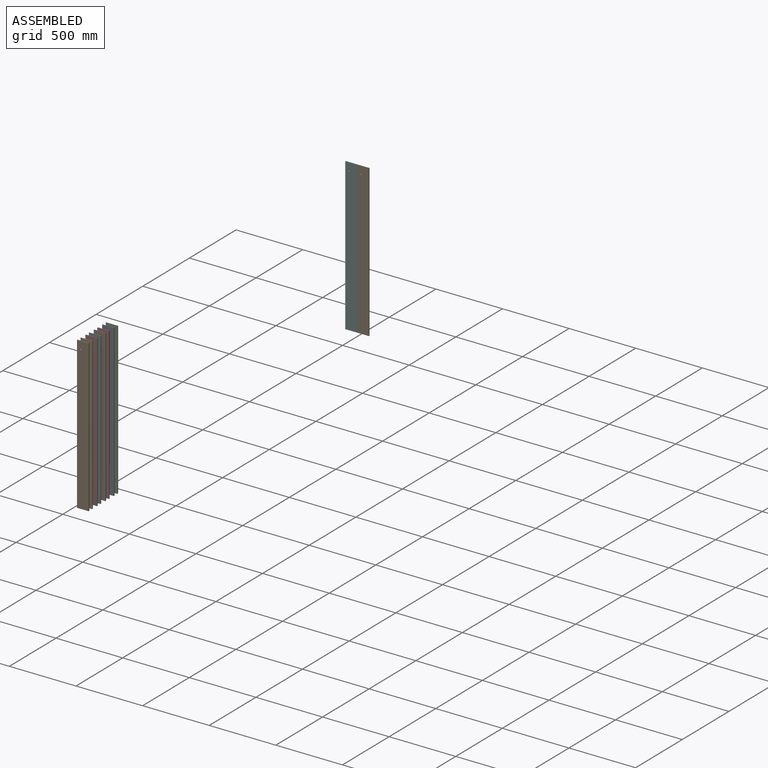
[diagram: assembled view]
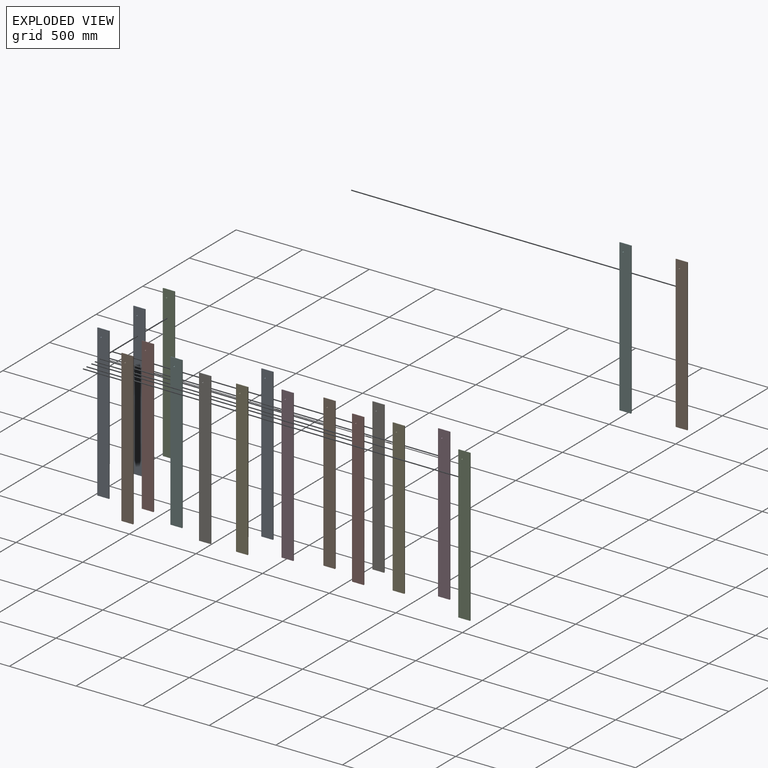
[diagram: exploded view]
GUIDED TOUR — MATED ASSEMBLY (Onshape document 61c3415b2d55d3865baf133d, AutoMate assembly 61c3415b2d55d3865baf133d_51462858bf2ae01c773f1abe_f313c27092914a25d2ca75d9_default)

This assembly has 18 components, labeled P0..P17 below (a component is one placed occurrence of a part; the same part can appear more than once), held together by 1 mate. A mate is a constraint between two components; its type names the relative motion it leaves free:
  CYLINDRICAL — leaves both rotation about and translation along the listed axis free.
Axis/direction vectors are unit vectors and 'through' points are millimeter coordinates, both in the assembly's world frame.

MATES
  1. CYLINDRICAL "Cylindrical 1": P8 <-> P10, axis (0.000, 1.000, 0.000) through (-403.27, -138.05, 668.45) mm

ASSEMBLY ORDER
  1. P16 — the base component [order verified]
  2. P15 [order verified]
  3. P13 [order verified]
  4. P14 [order verified]
  5. P12 [order verified]
  6. P11 [order verified]
  7. P9 [order verified]
  8. P7 [order verified]
  9. P8 [order verified]
  10. P10 [order verified]
  11. P6 [order verified]
  12. P4 [order verified]
  13. P3 [order verified]
  14. P2 [order verified]
  15. P0 [order verified]
  16. P5 [order verified]
  17. P17 [order verified]
  18. P1 [order verified]
Order-tag legend:
  [order verified] — this step's position reverses a verified removal order: the component was checked to insert without passing through the ones already placed.

Of the 18 components, 18 carry the full construction recipe — the FeatureScript program that regenerates the part's solid from scratch; the rest are supplied as boundary geometry only.
Because this assembly has more than 12 components, the tour below covers the 12 most significant ones individually (every recipe-attached component first, then the largest by part volume), in assembly order; the remaining 6 are summarized together in a grouped section at the end.
Each toured component is shown spotlighted twice — in the assembled view, then in the exploded view, where a leader line traces a displaced component back to its assembled socket (saturated green if recipe-attached, orange if geometry-only; every other component desaturated gray) — followed by its recipe or geometry summary and the mates that hold it.
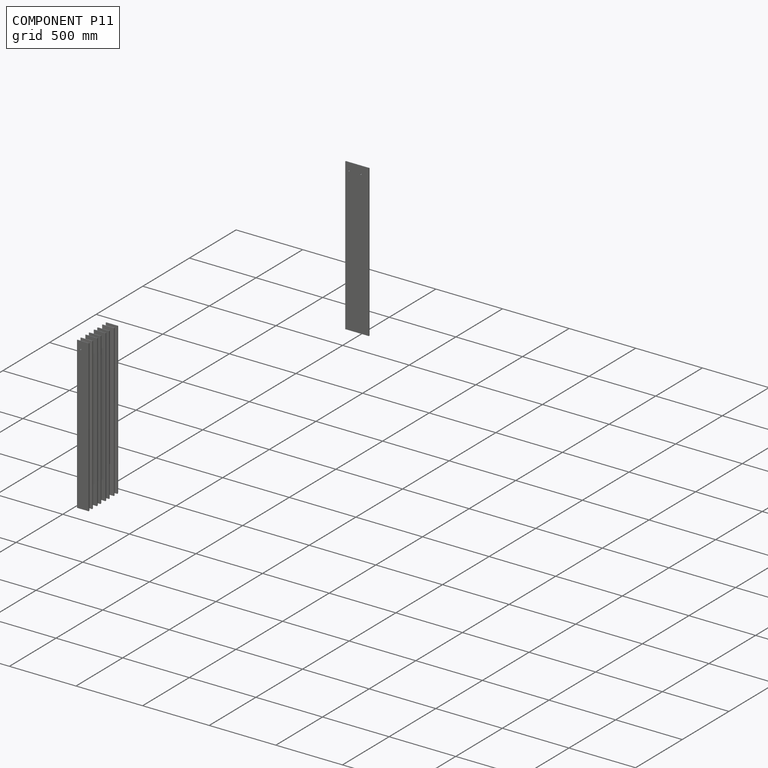
[diagram: component P11 — assembled]
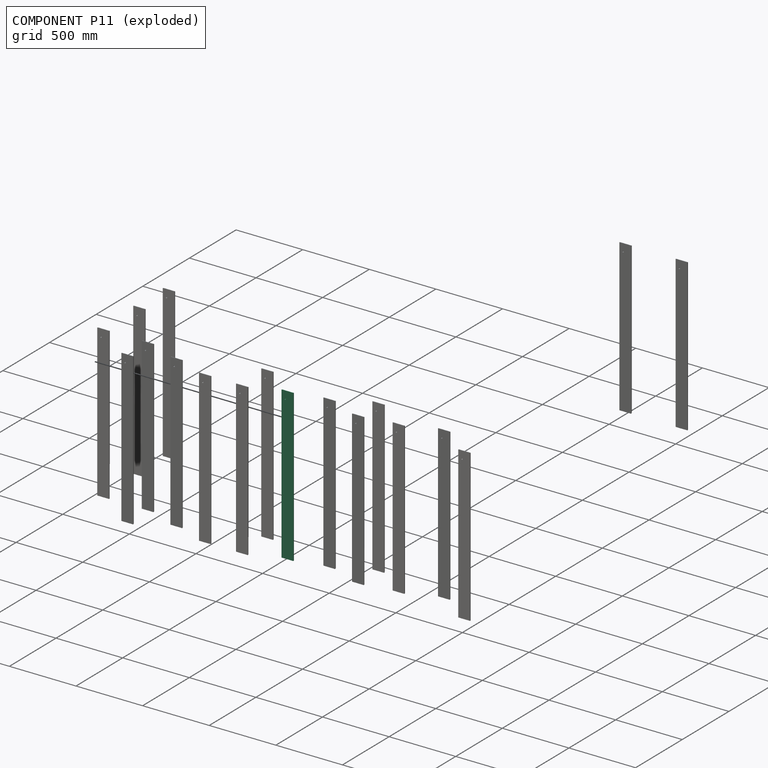
[diagram: component P11 — exploded]
COMPONENT P11 — same part as P0 (CADFS 00301429); its construction recipe is shown at P0.
Held by: no mates (free).
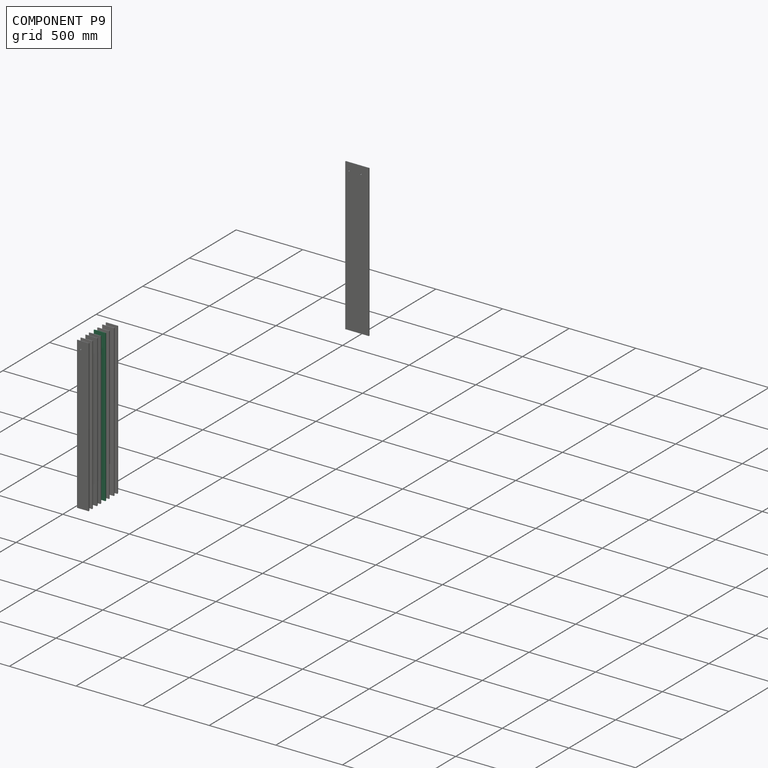
[diagram: component P9 — assembled]
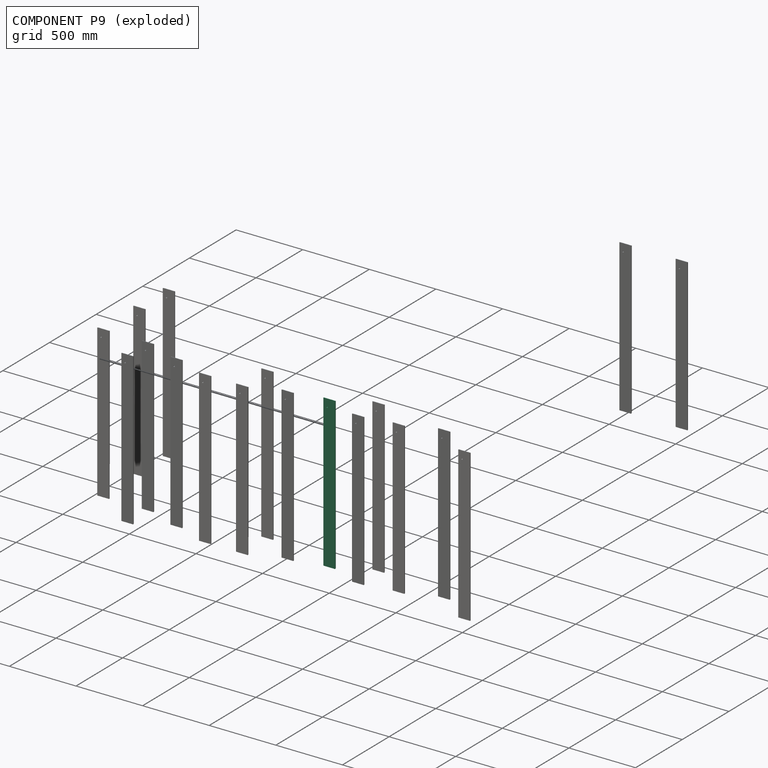
[diagram: component P9 — exploded]
COMPONENT P9 — same part as P0 (CADFS 00301429); its construction recipe is shown at P0.
Held by: no mates (free).
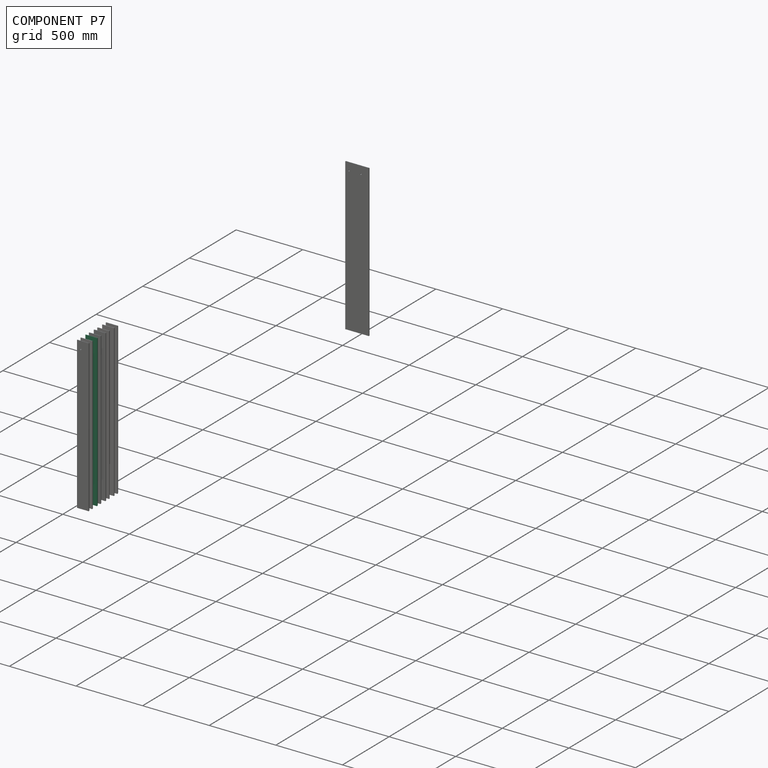
[diagram: component P7 — assembled]
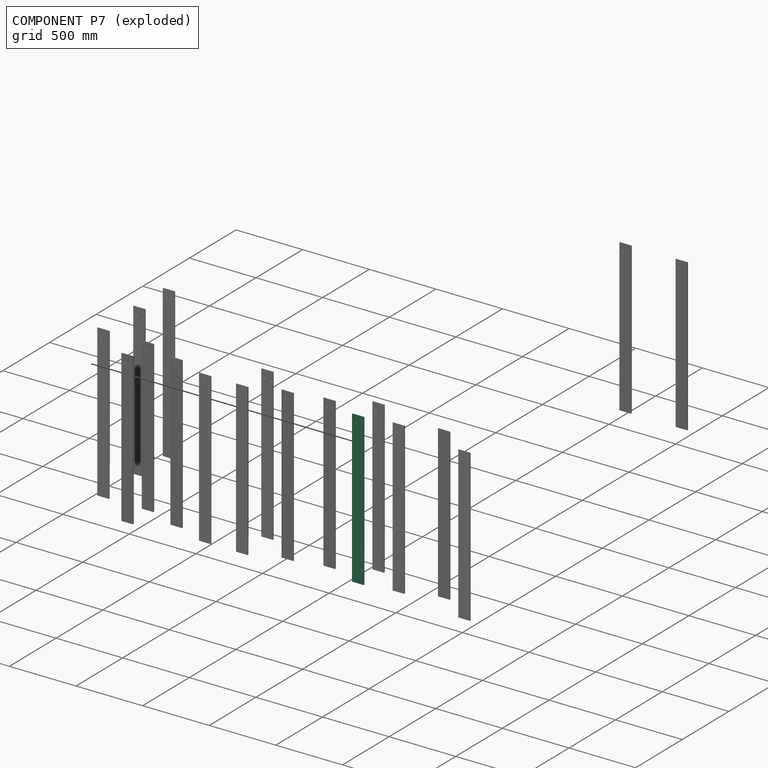
[diagram: component P7 — exploded]
COMPONENT P7 — same part as P0 (CADFS 00301429); its construction recipe is shown at P0.
Held by: no mates (free).
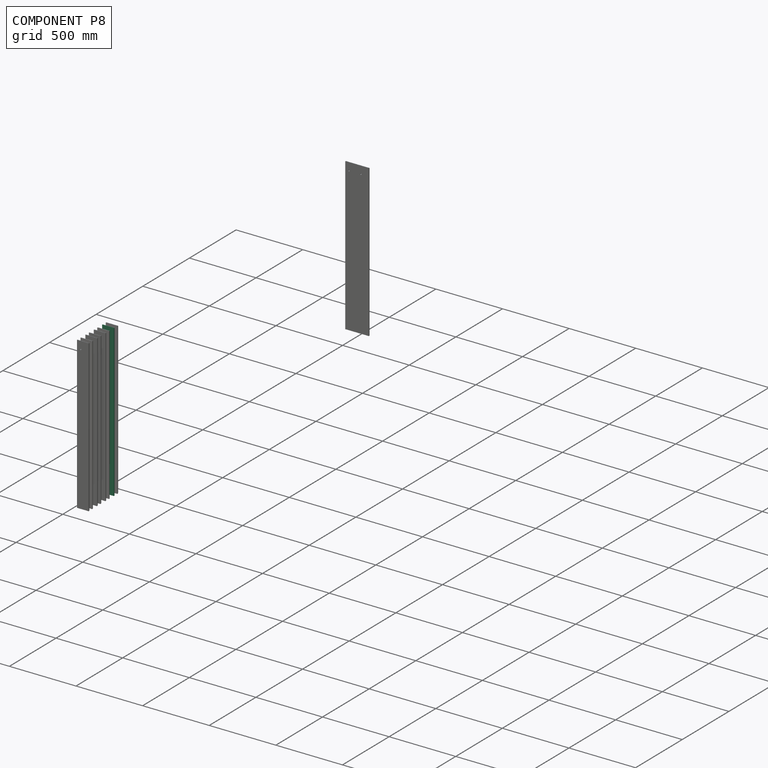
[diagram: component P8 — assembled]
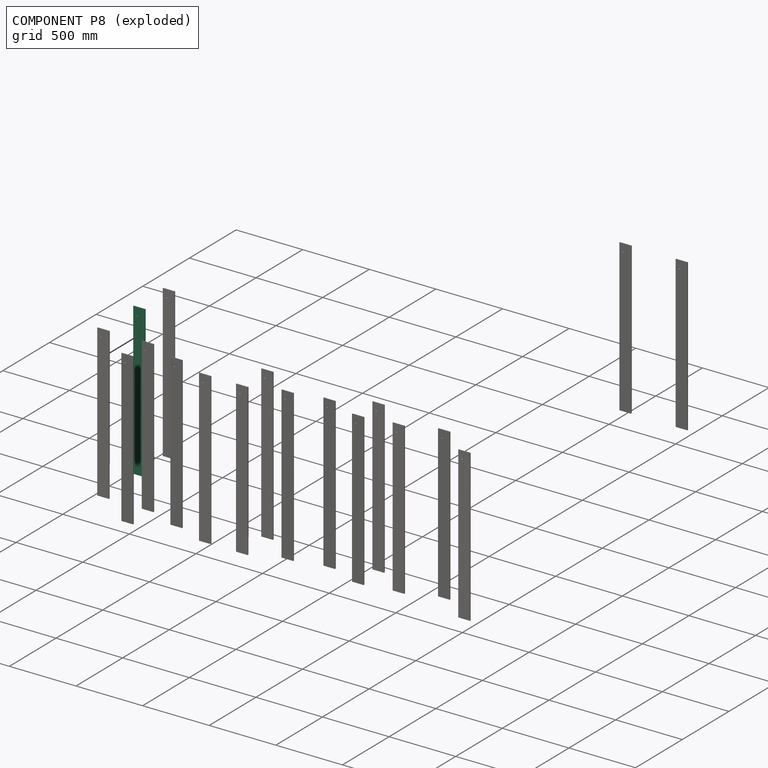
[diagram: component P8 — exploded]
COMPONENT P8 — same part as P0 (CADFS 00301429); its construction recipe is shown at P0.
Held by: CYLINDRICAL mate "Cylindrical 1" to P10.
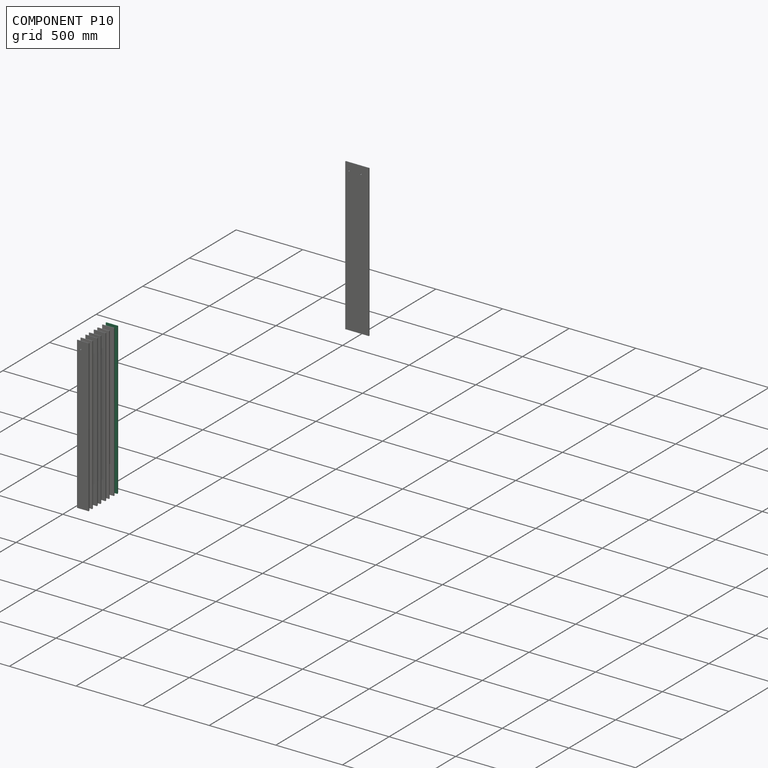
[diagram: component P10 — assembled]
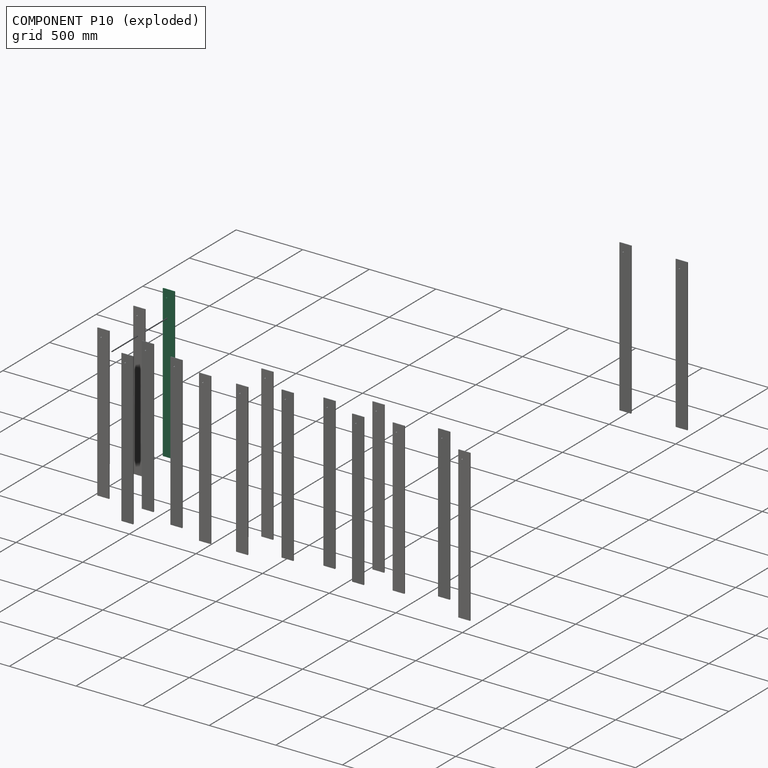
[diagram: component P10 — exploded]
COMPONENT P10 — same part as P0 (CADFS 00301429); its construction recipe is shown at P0.
Held by: CYLINDRICAL mate "Cylindrical 1" to P8.
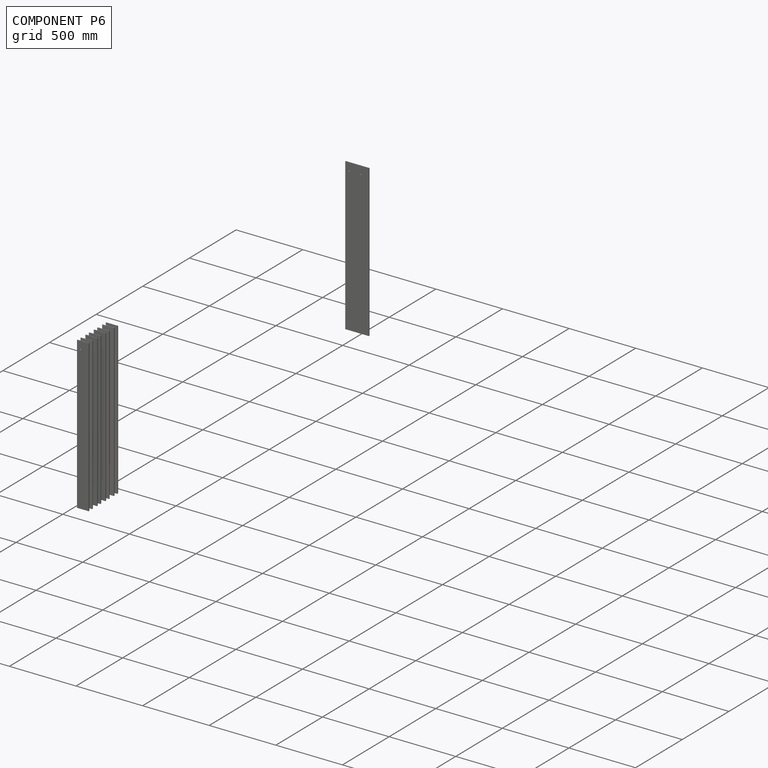
[diagram: component P6 — assembled]
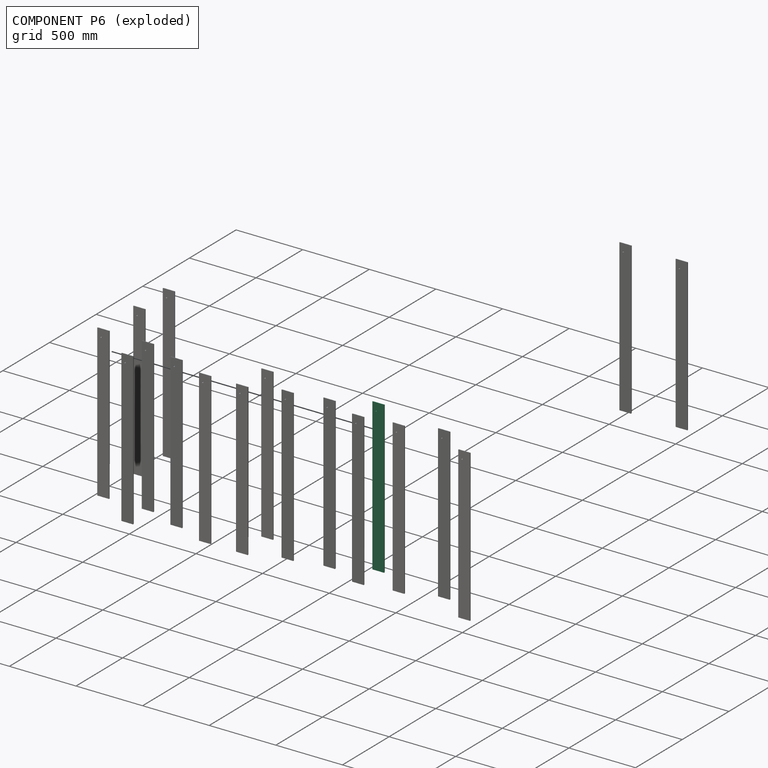
[diagram: component P6 — exploded]
COMPONENT P6 — same part as P0 (CADFS 00301429); its construction recipe is shown at P0.
Held by: no mates (free).
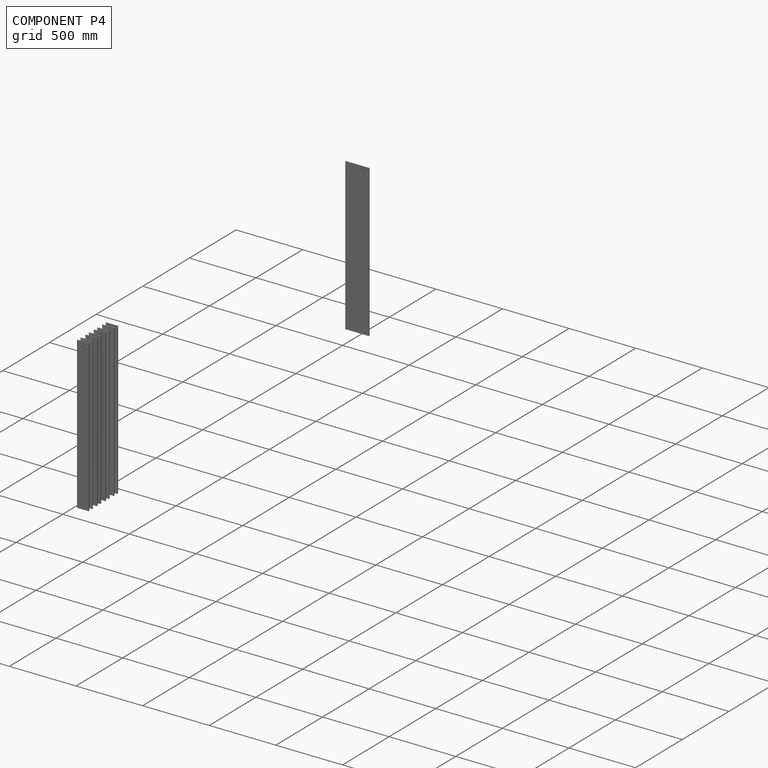
[diagram: component P4 — assembled]
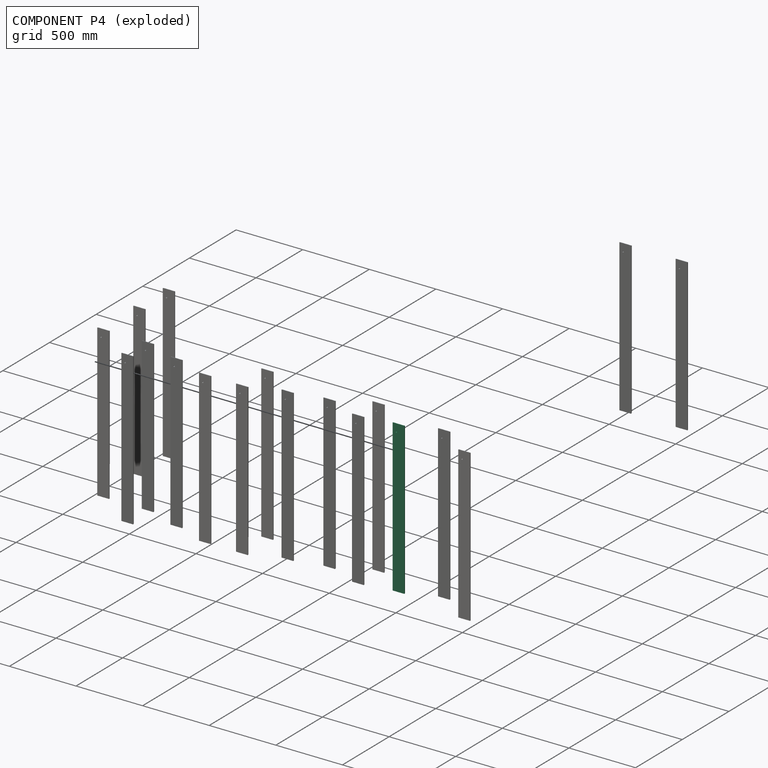
[diagram: component P4 — exploded]
COMPONENT P4 — same part as P0 (CADFS 00301429); its construction recipe is shown at P0.
Held by: no mates (free).
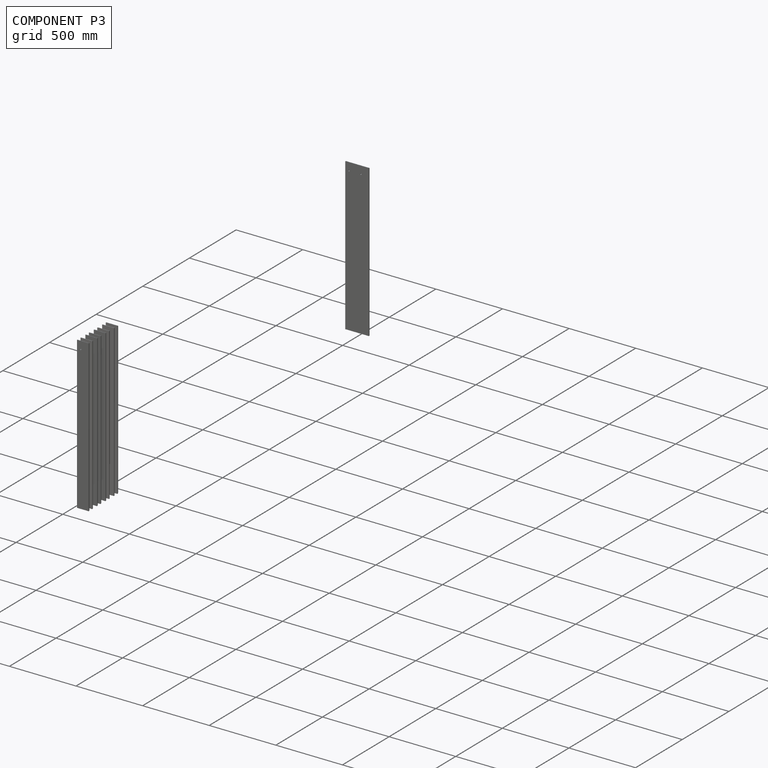
[diagram: component P3 — assembled]
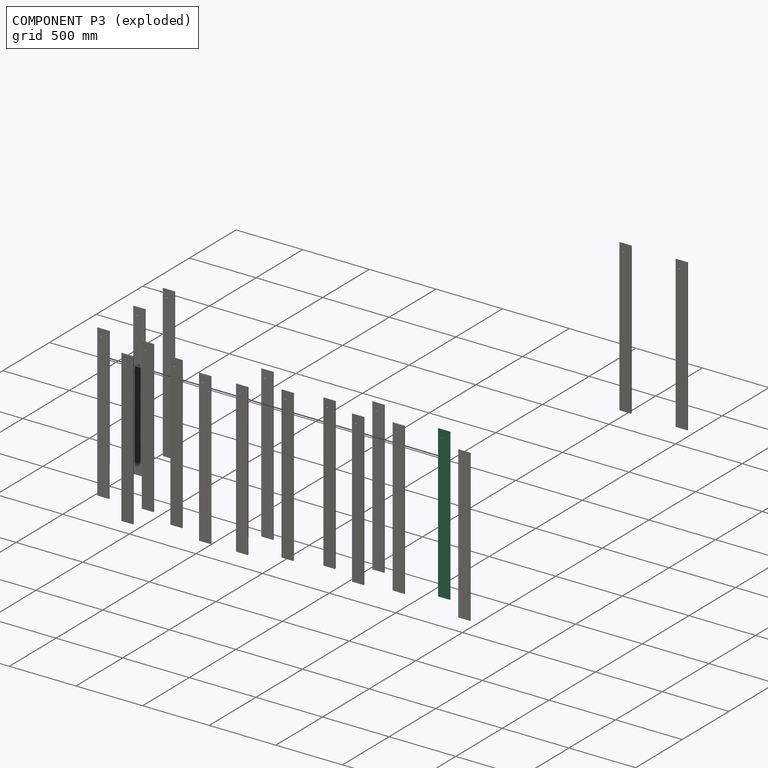
[diagram: component P3 — exploded]
COMPONENT P3 — same part as P0 (CADFS 00301429); its construction recipe is shown at P0.
Held by: no mates (free).
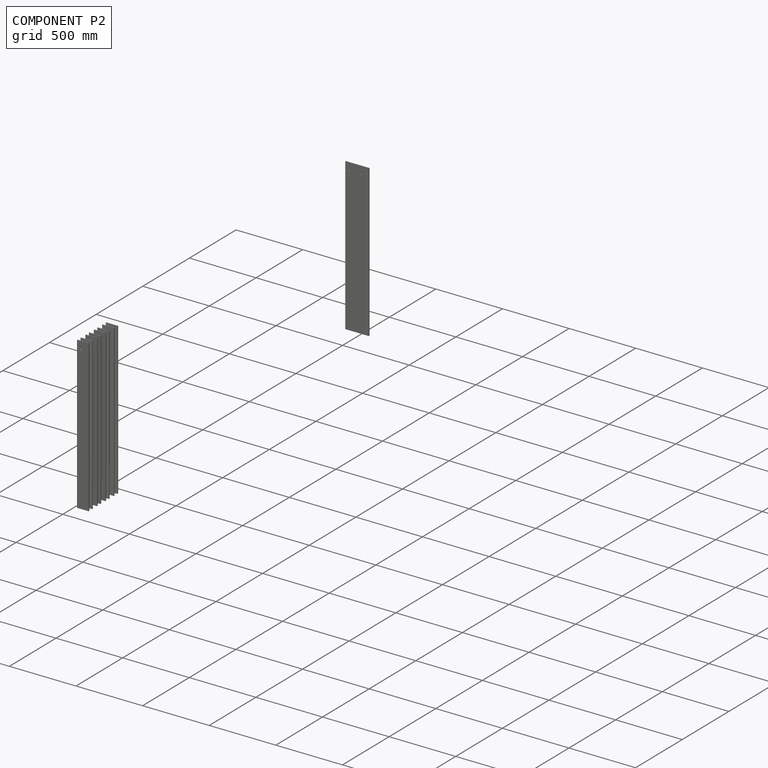
[diagram: component P2 — assembled]
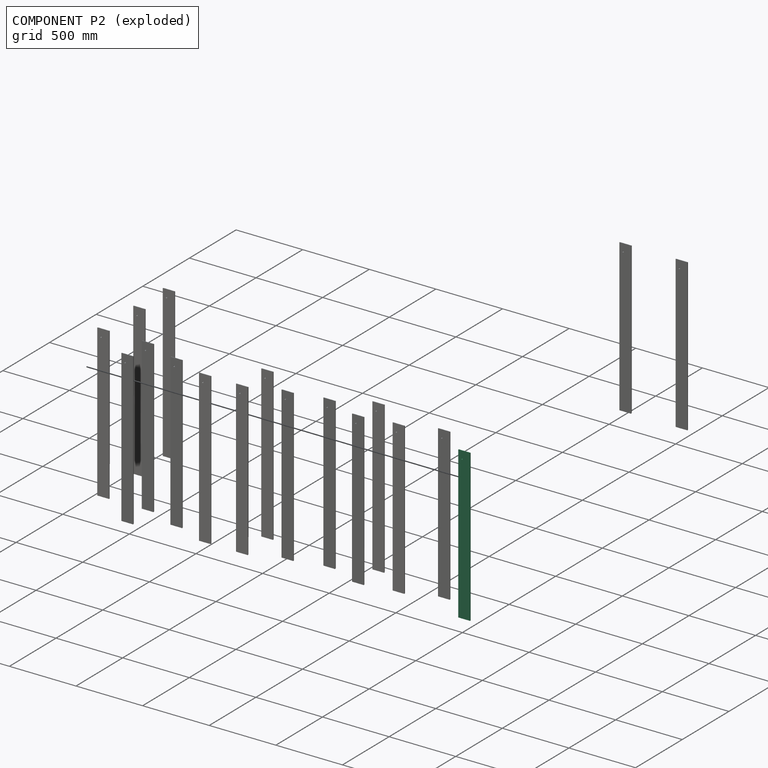
[diagram: component P2 — exploded]
COMPONENT P2 — same part as P0 (CADFS 00301429); its construction recipe is shown at P0.
Held by: no mates (free).
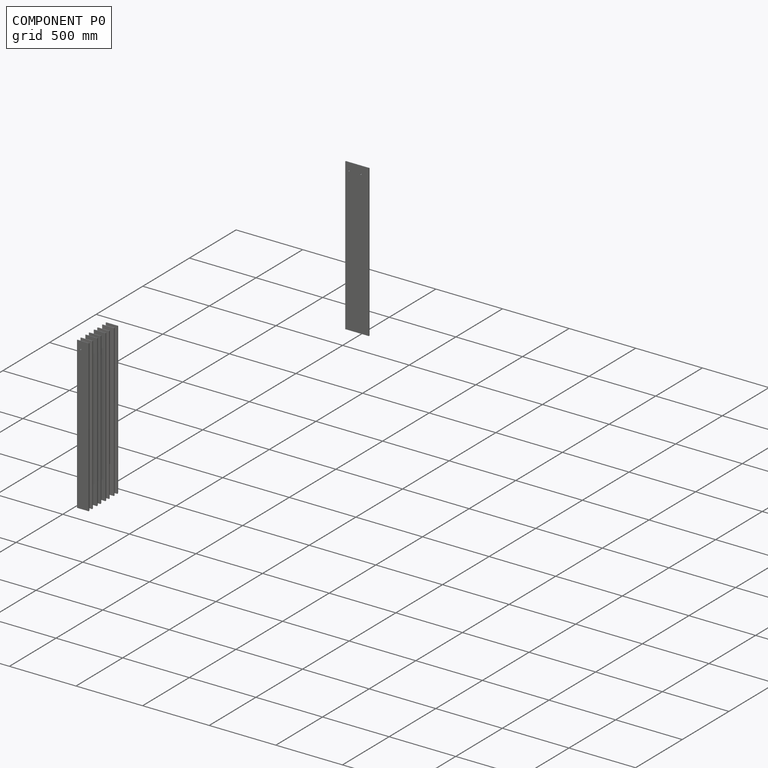
[diagram: component P0 — assembled]
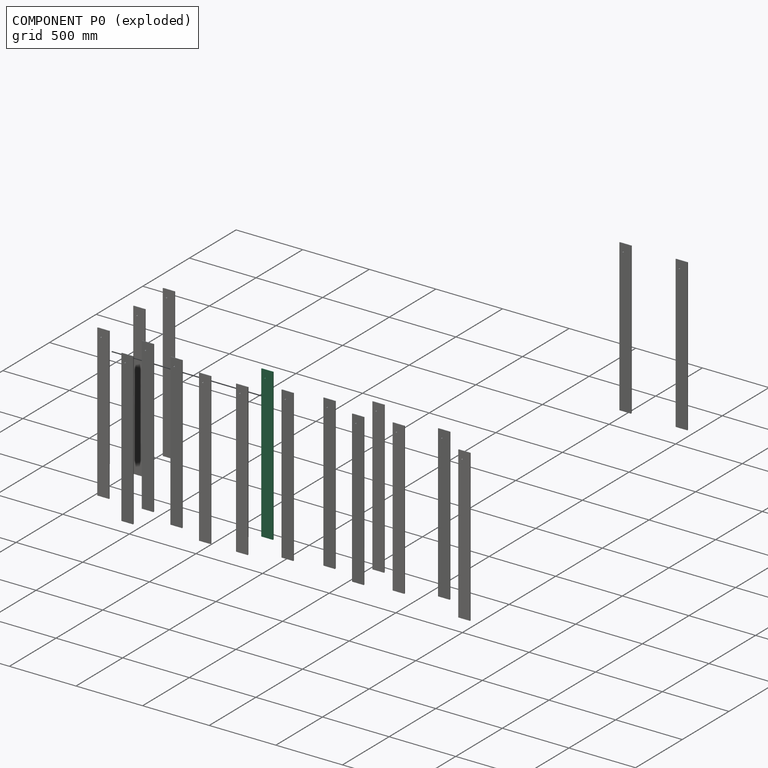
[diagram: component P0 — exploded]
COMPONENT P0 — recipe-attached (CADFS 00301429, mesh-verified: the recipe's output STEP matches this component's geometry to below the mesh-comparison resolution (tessellation chordal tolerance ~1.72 mm)).
Held by: no mates (free).
Construction recipe (FeatureScript — the CAD program that rebuilds this solid; sketch coordinates are in the units given by the * unit suffixes, e.g. mm):

FeatureScript 1511;
import(path : "onshape/std/geometry.fs", version : "1511.0");
import(path : "onshape/std/common.fs", version : "1511.0");
const mm = millimeter;
const VERTEX = EntityType.VERTEX;
const EDGE = EntityType.EDGE;
const FACE = EntityType.FACE;
const BODY = EntityType.BODY;
function v(x, y){return vector(x, y);}
function OD(order){return orderDisambiguation(order);}
function OSD(set){return originalSetDisambiguation(set);}
function TD(topology){return topologyDisambiguation(topology);}
function TDD(query){return trueDependencyDisambiguation(query);}
function sQuery(a, b, c) {return sketchEntityQuery(a, b, c);}

annotation { "Feature Type Name" : "Feature", "Feature Type Description" : "" }
export const myFeature = defineFeature(function(context is Context, id is Id, definition is map)
    precondition{}
    {
        {
            var Q0;
            Q0=qCreatedBy(makeId("Front.planeOp"),FACE);
            var sketch = newSketch(context, id + "F0", { "sketchPlane" : qUnion([Q0])});
            skLineSegment(sketch, "E0.bottom", {"start": v(-1866.8, -566.32) * mm, "end": v(-1955.7, -566.32) * mm});
            skLineSegment(sketch, "E0.top", {"start": v(-1866.8, 573.68) * mm, "end": v(-1955.7, 573.68) * mm});
            skLineSegment(sketch, "E0.left", {"start": v(-1866.8, -566.32) * mm, "end": v(-1866.8, 573.68) * mm});
            skLineSegment(sketch, "E0.right", {"start": v(-1955.7, -566.32) * mm, "end": v(-1955.7, 573.68) * mm});
            skCircle(sketch, "E1", {"center": v(-1928.2, 516.07) * mm, "radius": 5 * mm});
            skSolve(sketch);
        }
        {
            var Q0;
            Q0=makeQuery(id+"F0.imprint","IMPRINT",FACE,{"disambiguationData":[TD([[makeQuery(id+"F0.imprint","IMPRINT",EDGE,{"derivedFrom":sQuery(id+"F0.wireOp",EDGE,"E0.bottom")}),-1.0]])]});
            extrude(context, id + "F1", {"entities" : qUnion([Q0]), "depth" : 38.1 * mm});
        }
        {
            var Q0;
            Q0=makeQuery(id+"F1.opExtrude","CAP_EDGE",EDGE,{"disambiguationData":[OSD([sQuery(id+"F0.wireOp",EDGE,"E0.left")])],"isStart":true});
            var Q1;
            Q1=makeQuery(id+"F1.opExtrude","CAP_EDGE",EDGE,{"disambiguationData":[OSD([sQuery(id+"F0.wireOp",EDGE,"E0.top")])],"isStart":true});
            fillet(context, id + "F2", {"entities" : qUnion([Q0, Q1]), "radius" : 50 * mm, "tangentPropagation" : true, "allowEdgeOverflow" : false});
        }
    });
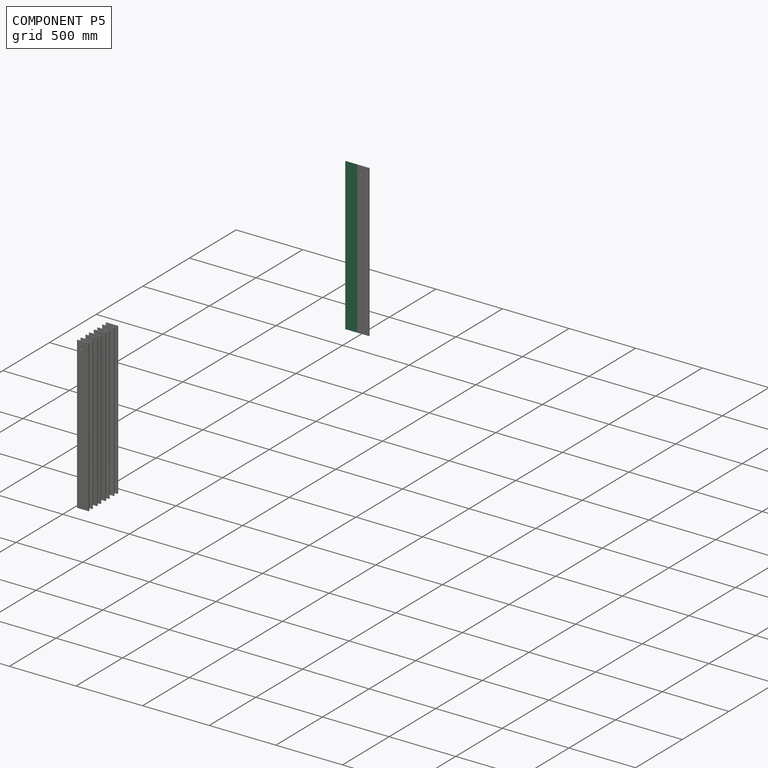
[diagram: component P5 — assembled]
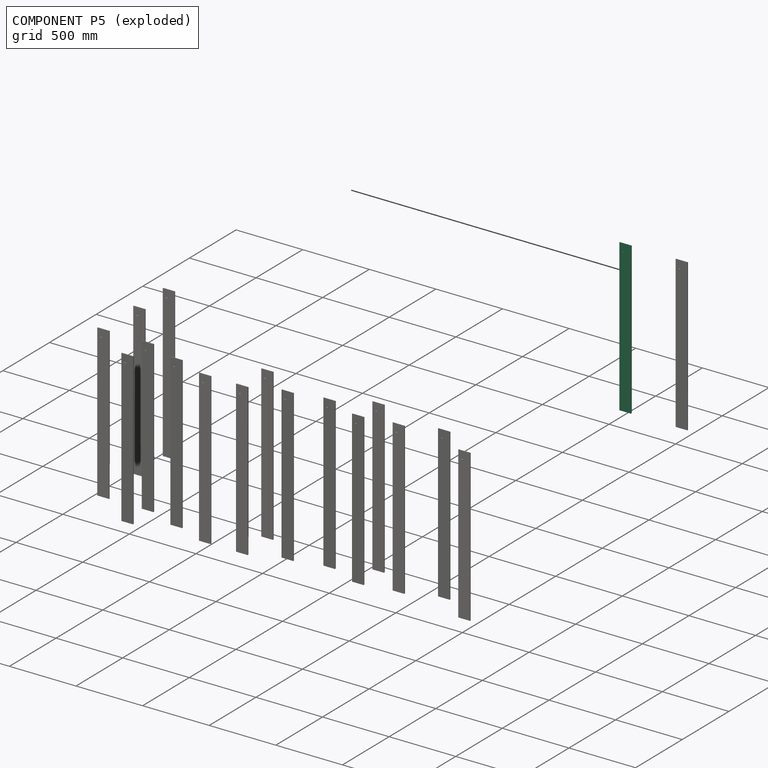
[diagram: component P5 — exploded]
COMPONENT P5 — same part as P0 (CADFS 00301429); its construction recipe is shown at P0.
Held by: no mates (free).
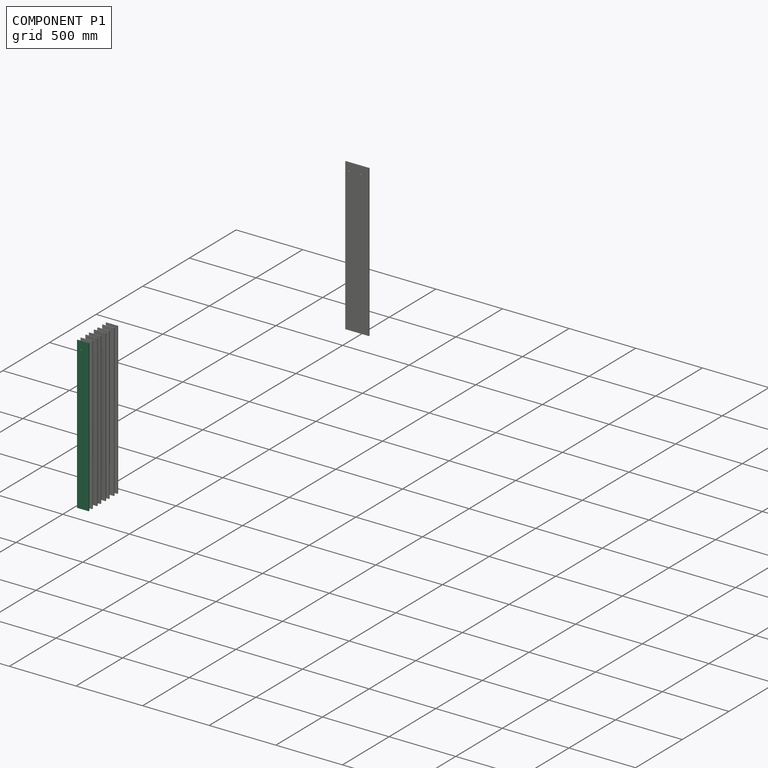
[diagram: component P1 — assembled]
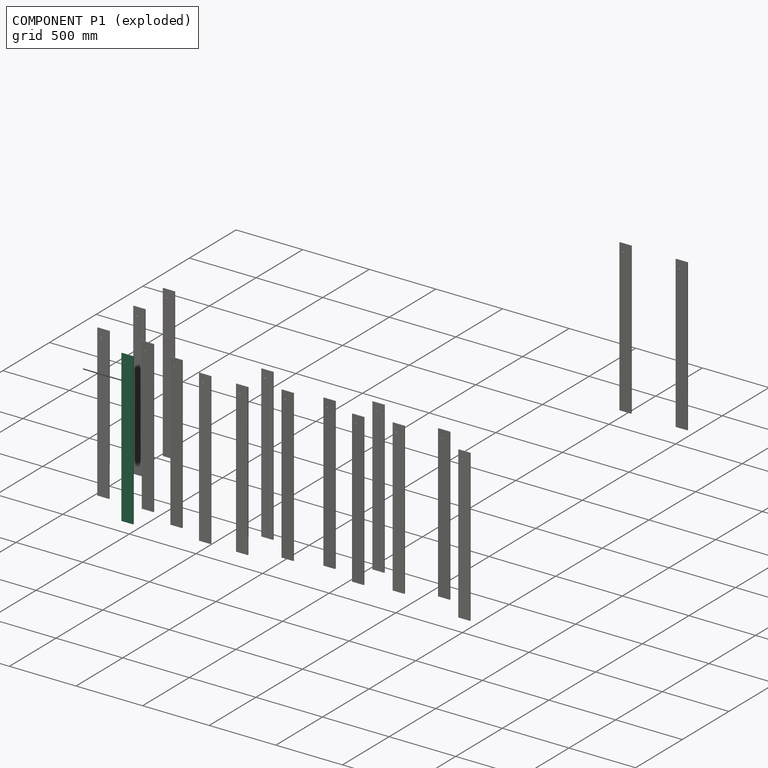
[diagram: component P1 — exploded]
COMPONENT P1 — same part as P0 (CADFS 00301429); its construction recipe is shown at P0.
Held by: no mates (free).
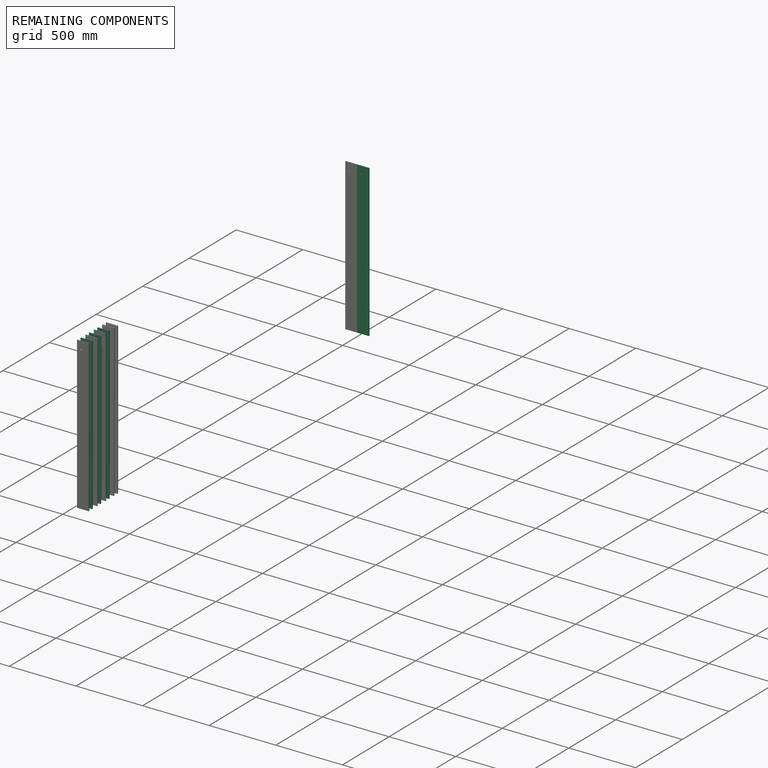
[diagram: remaining components — assembled]
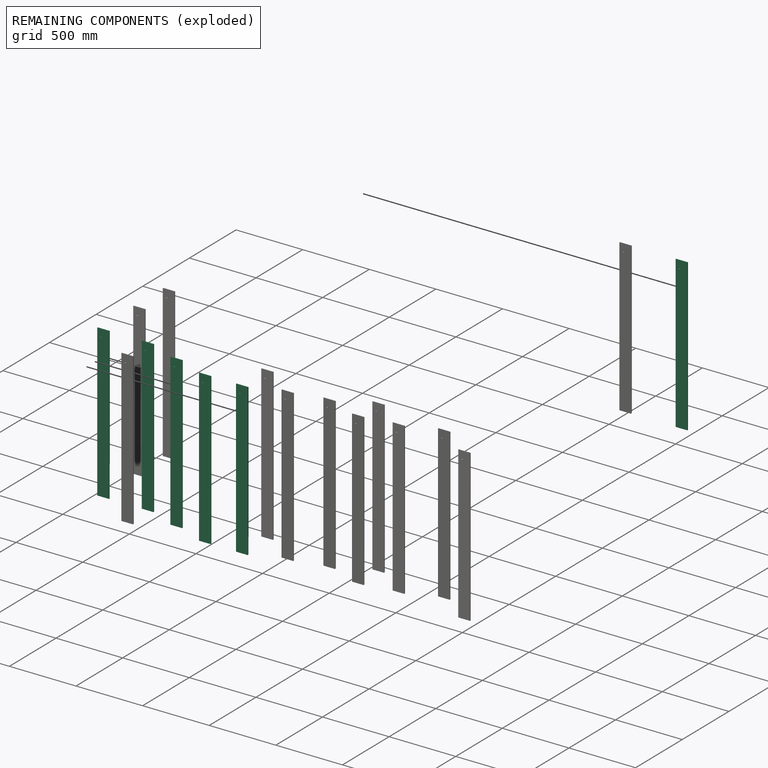
[diagram: remaining components — exploded]
REMAINING COMPONENTS (grouped) — the 6 components below fall outside the per-component tour by the significance rule stated above; both spotlight views highlight the whole group.
  P16: bounding box 1140.0 x 88.9 x 38.1 mm, volume 3283745 mm^3. Recipe-attached (CADFS 00301429; recipe not printed under the significance rule). Held by: no mates (free).
  P15: bounding box 1140.0 x 88.9 x 38.1 mm, volume 3283745 mm^3. Recipe-attached (CADFS 00301429; recipe not printed under the significance rule). Held by: no mates (free).
  P13: bounding box 1140.0 x 88.9 x 38.1 mm, volume 3283745 mm^3. Recipe-attached (CADFS 00301429; recipe not printed under the significance rule). Held by: no mates (free).
  P14: bounding box 1140.0 x 88.9 x 38.1 mm, volume 3283745 mm^3. Recipe-attached (CADFS 00301429; recipe not printed under the significance rule). Held by: no mates (free).
  P12: bounding box 1140.0 x 88.9 x 38.1 mm, volume 3283745 mm^3. Recipe-attached (CADFS 00301429; recipe not printed under the significance rule). Held by: no mates (free).
  P17: bounding box 1140.0 x 88.9 x 38.1 mm, volume 3283745 mm^3. Recipe-attached (CADFS 00301429; recipe not printed under the significance rule). Held by: no mates (free).
PROVENANCE & LICENSES
Assembly (occurrences, transforms, mates, per-part STEP geometry): AutoMate dataset, Zenodo record 7776208, CC0.
Construction recipes: CADFS (HuggingFace VladPyatov/CADFS, CC-BY-4.0, layered over the ABC dataset), FeatureScript reconstruction programs keyed by ABC model id.
Join: ABC meta listings map ABC model id -> Onshape documentId; within a shared document, parts are matched by geometric signature (bounding-box dims + volume at 0.1% relative tolerance, exact B-rep face/solid counts).
Verification: 18 of this assembly's 18 components carry a recipe attachment, and every attachment is mesh-verified: the CADFS STEP and the AutoMate member STEP were compared as meshes in their shared local frame (symmetric sampled-point-to-mesh distance); worst across the 18 attachments: below the mesh-comparison resolution (tessellation chordal tolerance ~1.72 mm) on a 1144 mm part.
Renders: orthographic iso camera (az 35 / el 25); the floor grid conveys scale (grid pitch printed in each image; no ruler). In the exploded view each component is displaced by its stored offset vector: the offsets alone carry the explosion direction (mate normal/axis signs are not orientation cues and do not encode it), and separation distances are assigned per mate-chain, not proportionally to assembly-order depth.
